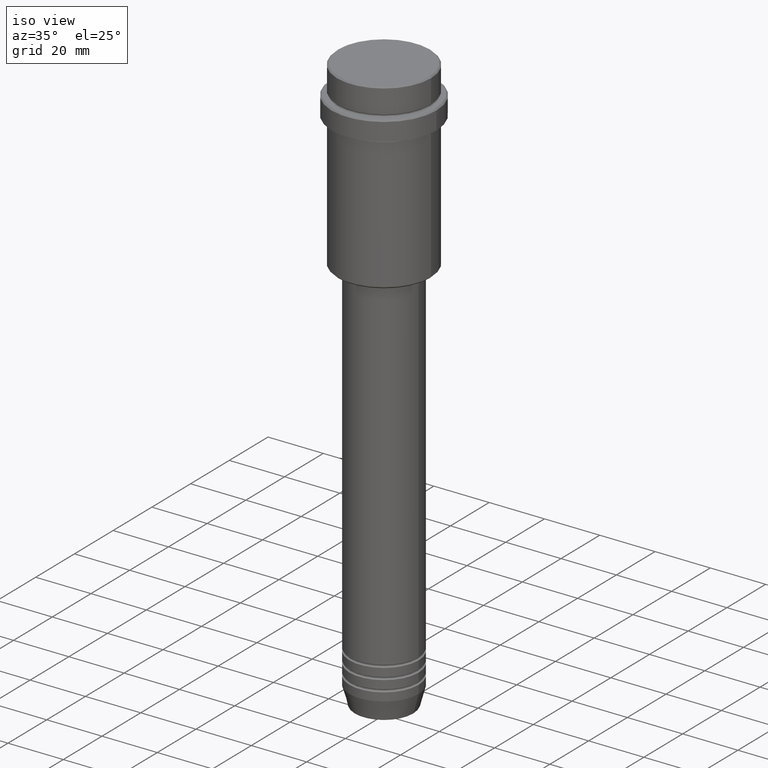
[diagram: clean part render]
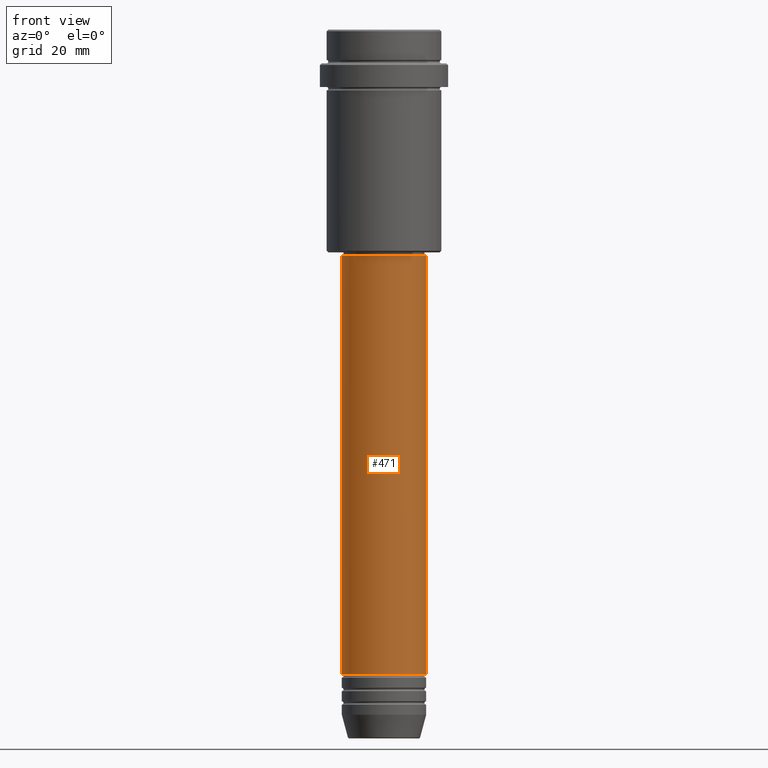
[diagram: tour spotlight — one face highlighted and labeled with its STEP entity id]
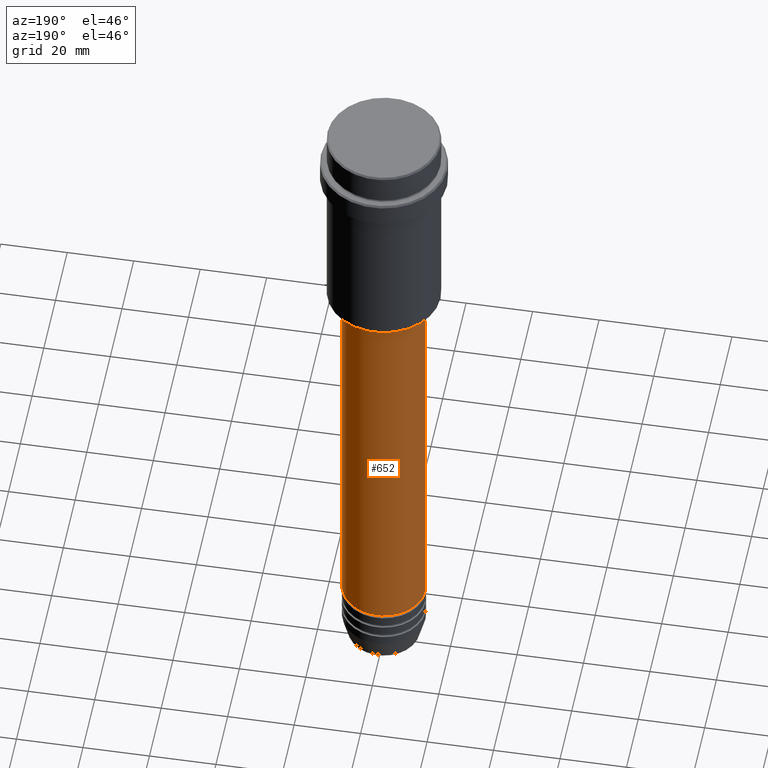
[diagram: tour spotlight — one face highlighted and labeled with its STEP entity id]
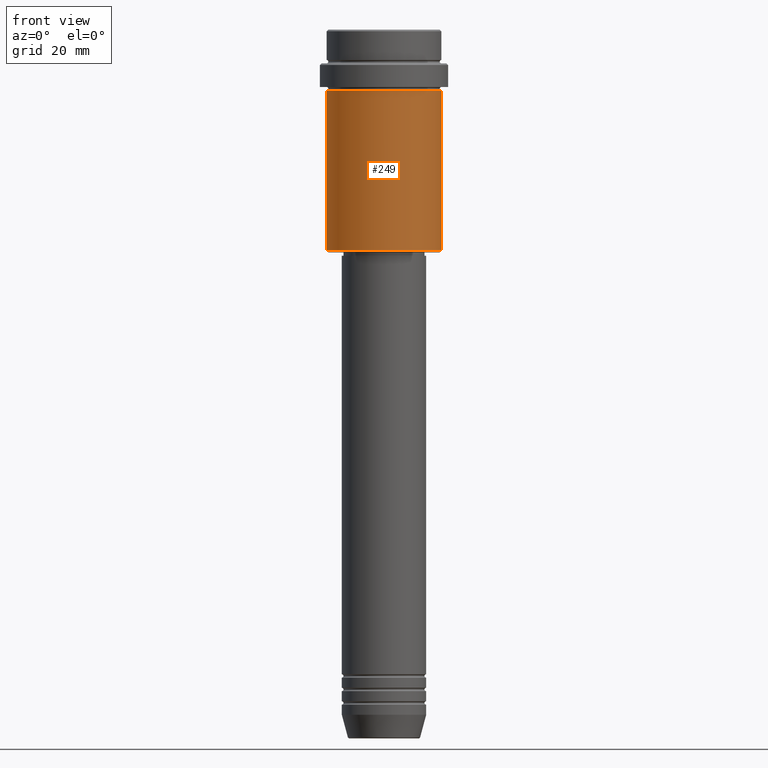
[diagram: tour spotlight — one face highlighted and labeled with its STEP entity id]
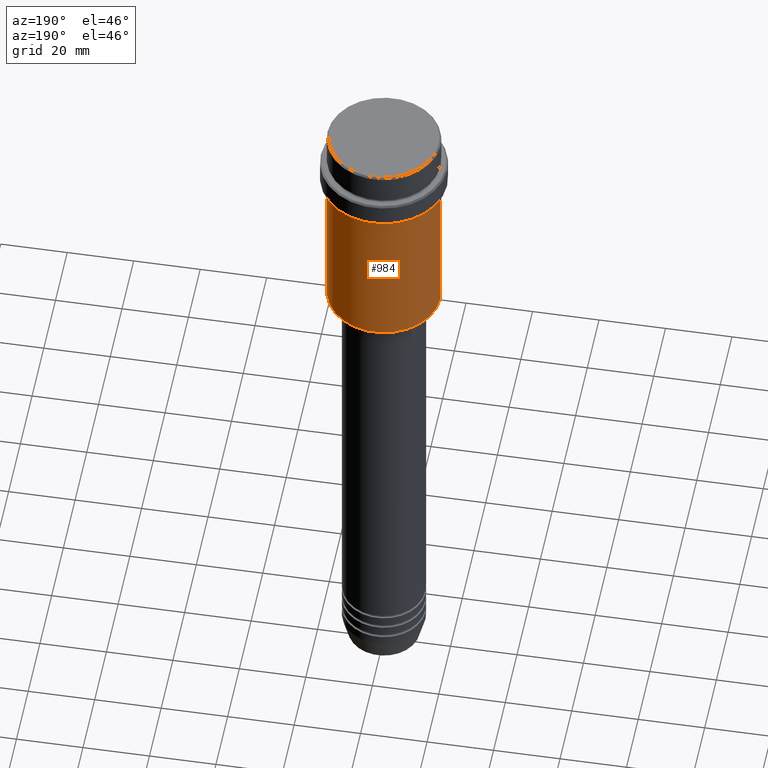
[diagram: tour spotlight — one face highlighted and labeled with its STEP entity id]
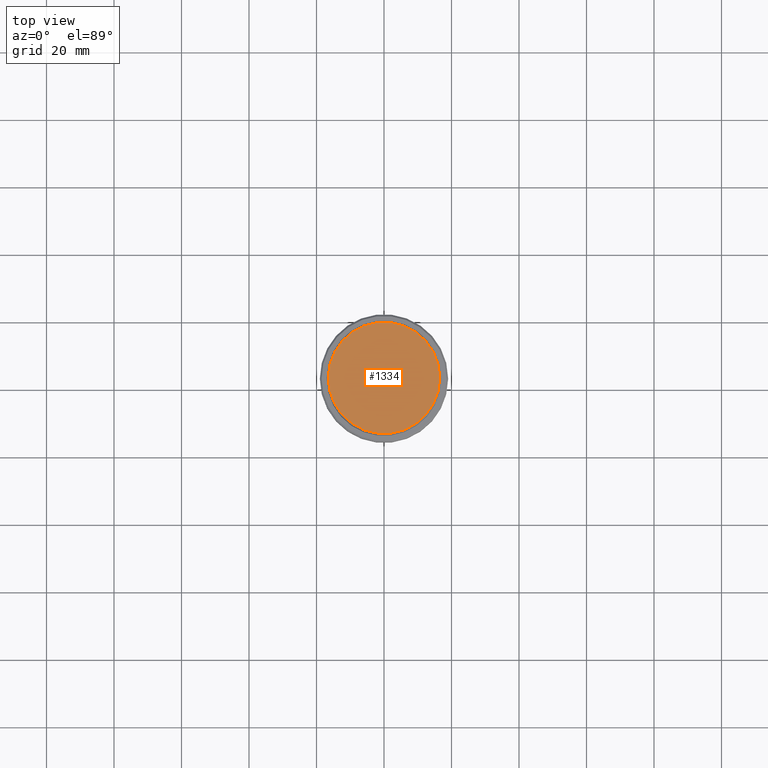
[diagram: tour spotlight — one face highlighted and labeled with its STEP entity id]
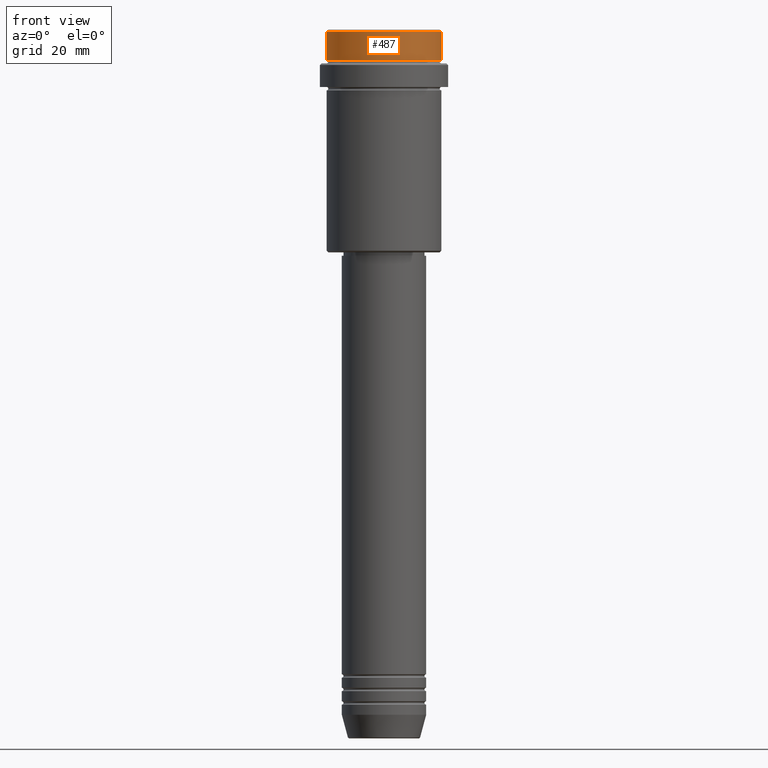
[diagram: tour spotlight — one face highlighted and labeled with its STEP entity id]
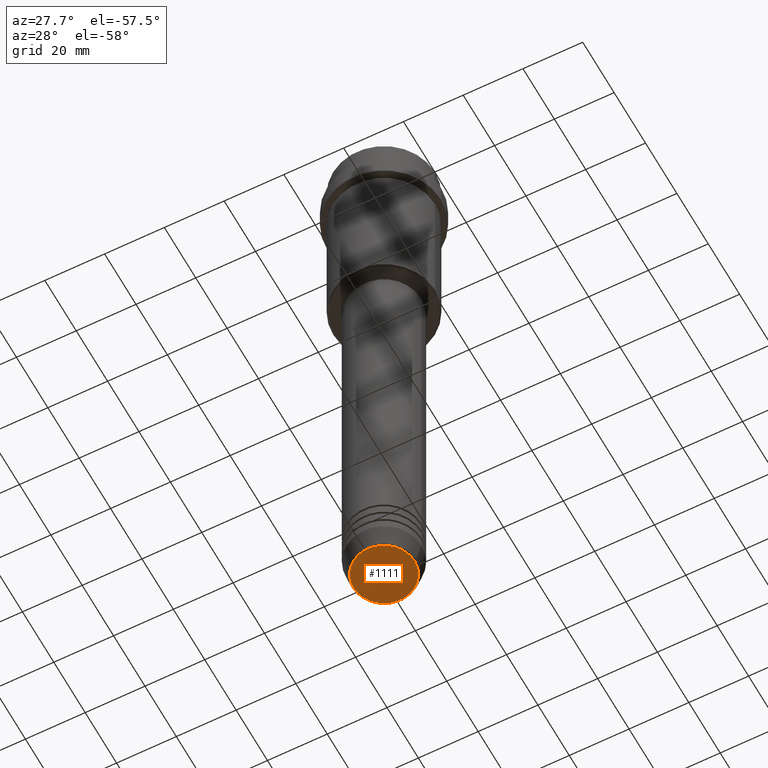
[diagram: tour spotlight — one face highlighted and labeled with its STEP entity id]
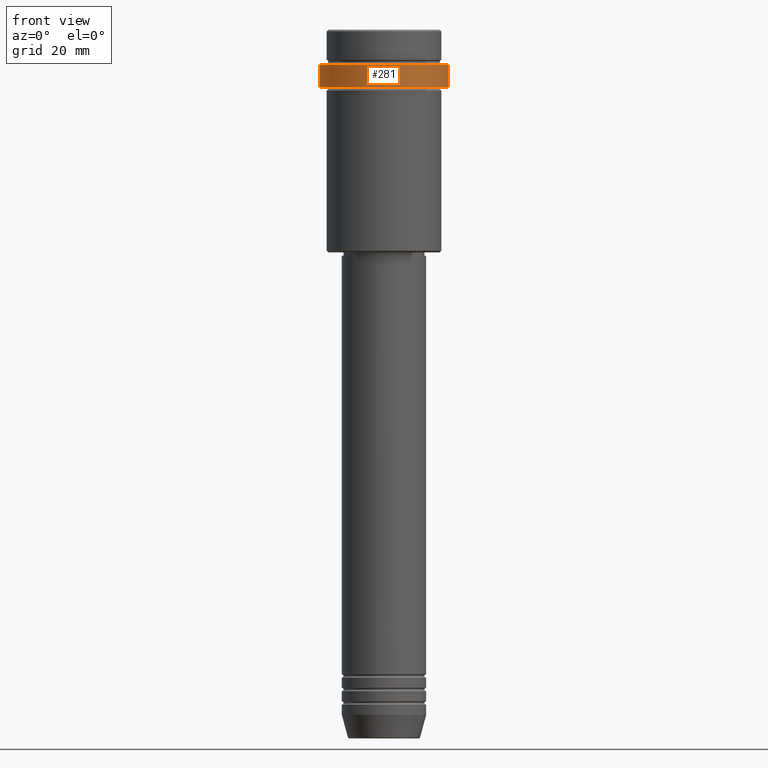
[diagram: tour spotlight — one face highlighted and labeled with its STEP entity id]
A machine part: a face-by-face anatomy tour. The part has 52 B-rep faces; the first image is the clean iso view, then the 8 largest visible faces are spotlighted one at a time (largest first), each with its STEP entity span.

Face 1 — front view, entity #471. In plain terms, the highlighted cylindrical surface (partial cylindrical patch) has radius 12.5 mm, axis along (-0, -0, 1).
Definition (entity closure, byte-faithful):
#24 = LINE ( 'NONE', #993, #838 ) ;
#69 = CARTESIAN_POINT ( 'NONE',  ( 0.000000000000000000, 0.000000000000000000, 0.000000000000000000 ) ) ;
#173 = DIRECTION ( 'NONE',  ( -0.000000000000000000, -0.000000000000000000, 1.000000000000000000 ) ) ;
#257 = VERTEX_POINT ( 'NONE', #261 ) ;
#261 = CARTESIAN_POINT ( 'NONE',  ( -12.50000000000000000, 1.530808498934191521E-15, -190.9999999999999147 ) ) ;
#277 = DIRECTION ( 'NONE',  ( 1.000000000000000000, 0.000000000000000000, 0.000000000000000000 ) ) ;
#289 = CARTESIAN_POINT ( 'NONE',  ( 12.50000000000000000, 0.000000000000000000, -67.00000000000000000 ) ) ;
#372 = CARTESIAN_POINT ( 'NONE',  ( -12.50000000000000000, 1.530808498934191521E-15, -67.00000000000000000 ) ) ;
#376 = DIRECTION ( 'NONE',  ( -0.000000000000000000, -0.000000000000000000, 1.000000000000000000 ) ) ;
#402 = CIRCLE ( 'NONE', #598, 12.50000000000000000 ) ;
#414 = DIRECTION ( 'NONE',  ( -0.000000000000000000, -0.000000000000000000, 1.000000000000000000 ) ) ;
#471 = ADVANCED_FACE ( 'NONE', ( #726 ), #940, .T. ) ;
#492 = VERTEX_POINT ( 'NONE', #289 ) ;
#507 = DIRECTION ( 'NONE',  ( 1.000000000000000000, 0.000000000000000000, 0.000000000000000000 ) ) ;
#529 = LINE ( 'NONE', #1399, #1236 ) ;
#550 = AXIS2_PLACEMENT_3D ( 'NONE', #69, #376, #1148 ) ;
#552 = CIRCLE ( 'NONE', #1115, 12.50000000000000000 ) ;
#556 = CARTESIAN_POINT ( 'NONE',  ( 0.000000000000000000, 0.000000000000000000, -67.00000000000000000 ) ) ;
#568 = ORIENTED_EDGE ( 'NONE', *, *, #693, .F. ) ;
#598 = AXIS2_PLACEMENT_3D ( 'NONE', #556, #949, #507 ) ;
#646 = EDGE_CURVE ( 'NONE', #257, #1302, #529, .T. ) ;
#693 = EDGE_CURVE ( 'NONE', #1302, #492, #402, .T. ) ;
#726 = FACE_OUTER_BOUND ( 'NONE', #869, .T. ) ;
#753 = EDGE_CURVE ( 'NONE', #257, #884, #552, .T. ) ;
#794 = ORIENTED_EDGE ( 'NONE', *, *, #646, .F. ) ;
#838 = VECTOR ( 'NONE', #1227, 1000.000000000000000 ) ;
#869 = EDGE_LOOP ( 'NONE', ( #794, #1129, #1193, #568 ) ) ;
#884 = VERTEX_POINT ( 'NONE', #974 ) ;
#940 = CYLINDRICAL_SURFACE ( 'NONE', #550, 12.50000000000000000 ) ;
#949 = DIRECTION ( 'NONE',  ( -0.000000000000000000, -0.000000000000000000, 1.000000000000000000 ) ) ;
#969 = EDGE_CURVE ( 'NONE', #884, #492, #24, .T. ) ;
#974 = CARTESIAN_POINT ( 'NONE',  ( 12.50000000000000000, 0.000000000000000000, -190.9999999999999147 ) ) ;
#993 = CARTESIAN_POINT ( 'NONE',  ( 12.50000000000000000, 0.000000000000000000, 0.000000000000000000 ) ) ;
#1115 = AXIS2_PLACEMENT_3D ( 'NONE', #1270, #173, #277 ) ;
#1129 = ORIENTED_EDGE ( 'NONE', *, *, #753, .T. ) ;
#1148 = DIRECTION ( 'NONE',  ( 1.000000000000000000, 0.000000000000000000, 0.000000000000000000 ) ) ;
#1193 = ORIENTED_EDGE ( 'NONE', *, *, #969, .T. ) ;
#1227 = DIRECTION ( 'NONE',  ( -0.000000000000000000, -0.000000000000000000, 1.000000000000000000 ) ) ;
#1236 = VECTOR ( 'NONE', #414, 1000.000000000000000 ) ;
#1270 = CARTESIAN_POINT ( 'NONE',  ( 0.000000000000000000, 0.000000000000000000, -190.9999999999999147 ) ) ;
#1302 = VERTEX_POINT ( 'NONE', #372 ) ;
#1399 = CARTESIAN_POINT ( 'NONE',  ( -12.50000000000000000, 1.530808498934191521E-15, 0.000000000000000000 ) ) ;

Face 2 — auxiliary view, entity #652. In plain terms, the highlighted cylindrical surface (partial cylindrical patch) has radius 12.5 mm, axis along (-0, -0, 1).
Definition (entity closure, byte-faithful):
#24 = LINE ( 'NONE', #993, #838 ) ;
#102 = DIRECTION ( 'NONE',  ( -0.000000000000000000, -0.000000000000000000, 1.000000000000000000 ) ) ;
#161 = AXIS2_PLACEMENT_3D ( 'NONE', #968, #102, #532 ) ;
#203 = CARTESIAN_POINT ( 'NONE',  ( 0.000000000000000000, 0.000000000000000000, 0.000000000000000000 ) ) ;
#245 = ORIENTED_EDGE ( 'NONE', *, *, #969, .F. ) ;
#257 = VERTEX_POINT ( 'NONE', #261 ) ;
#261 = CARTESIAN_POINT ( 'NONE',  ( -12.50000000000000000, 1.530808498934191521E-15, -190.9999999999999147 ) ) ;
#289 = CARTESIAN_POINT ( 'NONE',  ( 12.50000000000000000, 0.000000000000000000, -67.00000000000000000 ) ) ;
#310 = AXIS2_PLACEMENT_3D ( 'NONE', #1176, #755, #978 ) ;
#372 = CARTESIAN_POINT ( 'NONE',  ( -12.50000000000000000, 1.530808498934191521E-15, -67.00000000000000000 ) ) ;
#414 = DIRECTION ( 'NONE',  ( -0.000000000000000000, -0.000000000000000000, 1.000000000000000000 ) ) ;
#492 = VERTEX_POINT ( 'NONE', #289 ) ;
#524 = DIRECTION ( 'NONE',  ( 1.000000000000000000, 0.000000000000000000, 0.000000000000000000 ) ) ;
#529 = LINE ( 'NONE', #1399, #1236 ) ;
#532 = DIRECTION ( 'NONE',  ( 1.000000000000000000, 0.000000000000000000, 0.000000000000000000 ) ) ;
#535 = DIRECTION ( 'NONE',  ( -0.000000000000000000, -0.000000000000000000, 1.000000000000000000 ) ) ;
#562 = EDGE_CURVE ( 'NONE', #492, #1302, #929, .T. ) ;
#646 = EDGE_CURVE ( 'NONE', #257, #1302, #529, .T. ) ;
#652 = ADVANCED_FACE ( 'NONE', ( #1296 ), #1182, .T. ) ;
#755 = DIRECTION ( 'NONE',  ( -0.000000000000000000, -0.000000000000000000, 1.000000000000000000 ) ) ;
#756 = ORIENTED_EDGE ( 'NONE', *, *, #646, .T. ) ;
#838 = VECTOR ( 'NONE', #1227, 1000.000000000000000 ) ;
#884 = VERTEX_POINT ( 'NONE', #974 ) ;
#929 = CIRCLE ( 'NONE', #310, 12.50000000000000000 ) ;
#936 = ORIENTED_EDGE ( 'NONE', *, *, #562, .F. ) ;
#968 = CARTESIAN_POINT ( 'NONE',  ( 0.000000000000000000, 0.000000000000000000, -190.9999999999999147 ) ) ;
#969 = EDGE_CURVE ( 'NONE', #884, #492, #24, .T. ) ;
#974 = CARTESIAN_POINT ( 'NONE',  ( 12.50000000000000000, 0.000000000000000000, -190.9999999999999147 ) ) ;
#978 = DIRECTION ( 'NONE',  ( 1.000000000000000000, 0.000000000000000000, 0.000000000000000000 ) ) ;
#993 = CARTESIAN_POINT ( 'NONE',  ( 12.50000000000000000, 0.000000000000000000, 0.000000000000000000 ) ) ;
#1016 = ORIENTED_EDGE ( 'NONE', *, *, #1051, .T. ) ;
#1051 = EDGE_CURVE ( 'NONE', #884, #257, #1284, .T. ) ;
#1164 = AXIS2_PLACEMENT_3D ( 'NONE', #203, #535, #524 ) ;
#1176 = CARTESIAN_POINT ( 'NONE',  ( 0.000000000000000000, 0.000000000000000000, -67.00000000000000000 ) ) ;
#1182 = CYLINDRICAL_SURFACE ( 'NONE', #1164, 12.50000000000000000 ) ;
#1227 = DIRECTION ( 'NONE',  ( -0.000000000000000000, -0.000000000000000000, 1.000000000000000000 ) ) ;
#1236 = VECTOR ( 'NONE', #414, 1000.000000000000000 ) ;
#1284 = CIRCLE ( 'NONE', #161, 12.50000000000000000 ) ;
#1296 = FACE_OUTER_BOUND ( 'NONE', #1342, .T. ) ;
#1302 = VERTEX_POINT ( 'NONE', #372 ) ;
#1342 = EDGE_LOOP ( 'NONE', ( #1016, #756, #936, #245 ) ) ;
#1399 = CARTESIAN_POINT ( 'NONE',  ( -12.50000000000000000, 1.530808498934191521E-15, 0.000000000000000000 ) ) ;

Face 3 — front view, entity #249. In plain terms, the highlighted cylindrical surface (partial cylindrical patch) has radius 17 mm, axis along (-0, -0, 1).
Definition (entity closure, byte-faithful):
#31 = CARTESIAN_POINT ( 'NONE',  ( 16.99999999999998579, 0.000000000000000000, 0.000000000000000000 ) ) ;
#32 = CYLINDRICAL_SURFACE ( 'NONE', #1003, 16.99999999999998579 ) ;
#114 = ORIENTED_EDGE ( 'NONE', *, *, #1001, .T. ) ;
#129 = CARTESIAN_POINT ( 'NONE',  ( -16.99999999999997513, 2.081899558550498307E-15, -18.00000000000000711 ) ) ;
#141 = CARTESIAN_POINT ( 'NONE',  ( 16.99999999999998579, 0.000000000000000000, -65.50000000000008527 ) ) ;
#142 = CARTESIAN_POINT ( 'NONE',  ( 0.000000000000000000, 0.000000000000000000, 0.000000000000000000 ) ) ;
#188 = DIRECTION ( 'NONE',  ( -0.000000000000000000, -0.000000000000000000, 1.000000000000000000 ) ) ;
#232 = VECTOR ( 'NONE', #1206, 1000.000000000000000 ) ;
#249 = ADVANCED_FACE ( 'NONE', ( #1117 ), #32, .T. ) ;
#314 = CARTESIAN_POINT ( 'NONE',  ( 0.000000000000000000, 0.000000000000000000, -65.50000000000008527 ) ) ;
#331 = EDGE_CURVE ( 'NONE', #1149, #1410, #1092, .T. ) ;
#464 = ORIENTED_EDGE ( 'NONE', *, *, #331, .F. ) ;
#469 = DIRECTION ( 'NONE',  ( -0.000000000000000000, -0.000000000000000000, 1.000000000000000000 ) ) ;
#470 = VERTEX_POINT ( 'NONE', #948 ) ;
#525 = CARTESIAN_POINT ( 'NONE',  ( 0.000000000000000000, 0.000000000000000000, -18.00000000000000711 ) ) ;
#579 = DIRECTION ( 'NONE',  ( 1.000000000000000000, 0.000000000000000000, 0.000000000000000000 ) ) ;
#600 = CIRCLE ( 'NONE', #1146, 16.99999999999998579 ) ;
#671 = LINE ( 'NONE', #935, #1072 ) ;
#717 = EDGE_CURVE ( 'NONE', #470, #1149, #671, .T. ) ;
#731 = DIRECTION ( 'NONE',  ( 1.000000000000000000, 0.000000000000000000, 0.000000000000000000 ) ) ;
#738 = DIRECTION ( 'NONE',  ( -0.000000000000000000, -0.000000000000000000, 1.000000000000000000 ) ) ;
#785 = ORIENTED_EDGE ( 'NONE', *, *, #1093, .T. ) ;
#836 = AXIS2_PLACEMENT_3D ( 'NONE', #525, #943, #731 ) ;
#880 = EDGE_LOOP ( 'NONE', ( #1337, #785, #114, #464 ) ) ;
#935 = CARTESIAN_POINT ( 'NONE',  ( -16.99999999999998579, 2.081899558550499096E-15, 0.000000000000000000 ) ) ;
#943 = DIRECTION ( 'NONE',  ( -0.000000000000000000, -0.000000000000000000, 1.000000000000000000 ) ) ;
#948 = CARTESIAN_POINT ( 'NONE',  ( -16.99999999999998579, 2.081899558550499096E-15, -65.50000000000008527 ) ) ;
#994 = VERTEX_POINT ( 'NONE', #141 ) ;
#1001 = EDGE_CURVE ( 'NONE', #994, #1410, #1014, .T. ) ;
#1003 = AXIS2_PLACEMENT_3D ( 'NONE', #142, #469, #579 ) ;
#1014 = LINE ( 'NONE', #31, #232 ) ;
#1072 = VECTOR ( 'NONE', #188, 1000.000000000000000 ) ;
#1092 = CIRCLE ( 'NONE', #836, 16.99999999999997513 ) ;
#1093 = EDGE_CURVE ( 'NONE', #470, #994, #600, .T. ) ;
#1117 = FACE_OUTER_BOUND ( 'NONE', #880, .T. ) ;
#1146 = AXIS2_PLACEMENT_3D ( 'NONE', #314, #738, #1309 ) ;
#1149 = VERTEX_POINT ( 'NONE', #129 ) ;
#1195 = CARTESIAN_POINT ( 'NONE',  ( 16.99999999999997513, 0.000000000000000000, -18.00000000000000711 ) ) ;
#1206 = DIRECTION ( 'NONE',  ( -0.000000000000000000, -0.000000000000000000, 1.000000000000000000 ) ) ;
#1309 = DIRECTION ( 'NONE',  ( -1.000000000000000000, 0.000000000000000000, 0.000000000000000000 ) ) ;
#1337 = ORIENTED_EDGE ( 'NONE', *, *, #717, .F. ) ;
#1410 = VERTEX_POINT ( 'NONE', #1195 ) ;

Face 4 — auxiliary view, entity #984. In plain terms, the highlighted cylindrical surface (partial cylindrical patch) has radius 17 mm, axis along (-0, -0, 1).
Definition (entity closure, byte-faithful):
#4 = FACE_OUTER_BOUND ( 'NONE', #814, .T. ) ;
#11 = CARTESIAN_POINT ( 'NONE',  ( 0.000000000000000000, 0.000000000000000000, 0.000000000000000000 ) ) ;
#31 = CARTESIAN_POINT ( 'NONE',  ( 16.99999999999998579, 0.000000000000000000, 0.000000000000000000 ) ) ;
#35 = CARTESIAN_POINT ( 'NONE',  ( 0.000000000000000000, 0.000000000000000000, -18.00000000000000711 ) ) ;
#129 = CARTESIAN_POINT ( 'NONE',  ( -16.99999999999997513, 2.081899558550498307E-15, -18.00000000000000711 ) ) ;
#141 = CARTESIAN_POINT ( 'NONE',  ( 16.99999999999998579, 0.000000000000000000, -65.50000000000008527 ) ) ;
#162 = DIRECTION ( 'NONE',  ( 1.000000000000000000, 0.000000000000000000, 0.000000000000000000 ) ) ;
#188 = DIRECTION ( 'NONE',  ( -0.000000000000000000, -0.000000000000000000, 1.000000000000000000 ) ) ;
#232 = VECTOR ( 'NONE', #1206, 1000.000000000000000 ) ;
#254 = CIRCLE ( 'NONE', #1050, 16.99999999999998579 ) ;
#260 = DIRECTION ( 'NONE',  ( -1.000000000000000000, 0.000000000000000000, 0.000000000000000000 ) ) ;
#297 = CIRCLE ( 'NONE', #1285, 16.99999999999997513 ) ;
#381 = CARTESIAN_POINT ( 'NONE',  ( 0.000000000000000000, 0.000000000000000000, -65.50000000000008527 ) ) ;
#457 = AXIS2_PLACEMENT_3D ( 'NONE', #11, #461, #1116 ) ;
#461 = DIRECTION ( 'NONE',  ( -0.000000000000000000, -0.000000000000000000, 1.000000000000000000 ) ) ;
#470 = VERTEX_POINT ( 'NONE', #948 ) ;
#671 = LINE ( 'NONE', #935, #1072 ) ;
#680 = ORIENTED_EDGE ( 'NONE', *, *, #1001, .F. ) ;
#717 = EDGE_CURVE ( 'NONE', #470, #1149, #671, .T. ) ;
#805 = DIRECTION ( 'NONE',  ( -0.000000000000000000, -0.000000000000000000, 1.000000000000000000 ) ) ;
#814 = EDGE_LOOP ( 'NONE', ( #1085, #871, #1289, #680 ) ) ;
#871 = ORIENTED_EDGE ( 'NONE', *, *, #717, .T. ) ;
#876 = CYLINDRICAL_SURFACE ( 'NONE', #457, 16.99999999999998579 ) ;
#935 = CARTESIAN_POINT ( 'NONE',  ( -16.99999999999998579, 2.081899558550499096E-15, 0.000000000000000000 ) ) ;
#948 = CARTESIAN_POINT ( 'NONE',  ( -16.99999999999998579, 2.081899558550499096E-15, -65.50000000000008527 ) ) ;
#984 = ADVANCED_FACE ( 'NONE', ( #4 ), #876, .T. ) ;
#994 = VERTEX_POINT ( 'NONE', #141 ) ;
#1001 = EDGE_CURVE ( 'NONE', #994, #1410, #1014, .T. ) ;
#1014 = LINE ( 'NONE', #31, #232 ) ;
#1050 = AXIS2_PLACEMENT_3D ( 'NONE', #381, #805, #260 ) ;
#1072 = VECTOR ( 'NONE', #188, 1000.000000000000000 ) ;
#1085 = ORIENTED_EDGE ( 'NONE', *, *, #1168, .T. ) ;
#1116 = DIRECTION ( 'NONE',  ( 1.000000000000000000, 0.000000000000000000, 0.000000000000000000 ) ) ;
#1149 = VERTEX_POINT ( 'NONE', #129 ) ;
#1150 = DIRECTION ( 'NONE',  ( -0.000000000000000000, -0.000000000000000000, 1.000000000000000000 ) ) ;
#1168 = EDGE_CURVE ( 'NONE', #994, #470, #254, .T. ) ;
#1195 = CARTESIAN_POINT ( 'NONE',  ( 16.99999999999997513, 0.000000000000000000, -18.00000000000000711 ) ) ;
#1206 = DIRECTION ( 'NONE',  ( -0.000000000000000000, -0.000000000000000000, 1.000000000000000000 ) ) ;
#1271 = EDGE_CURVE ( 'NONE', #1410, #1149, #297, .T. ) ;
#1285 = AXIS2_PLACEMENT_3D ( 'NONE', #35, #1150, #162 ) ;
#1289 = ORIENTED_EDGE ( 'NONE', *, *, #1271, .F. ) ;
#1410 = VERTEX_POINT ( 'NONE', #1195 ) ;

Face 5 — top view, entity #1334. In plain terms, the highlighted planar face has unit normal (0, -0, 1).
Definition (entity closure, byte-faithful):
#5 = EDGE_CURVE ( 'NONE', #1091, #440, #400, .T. ) ;
#49 = DIRECTION ( 'NONE',  ( -0.000000000000000000, -0.000000000000000000, 1.000000000000000000 ) ) ;
#76 = CARTESIAN_POINT ( 'NONE',  ( 0.000000000000000000, 0.000000000000000000, 0.000000000000000000 ) ) ;
#313 = AXIS2_PLACEMENT_3D ( 'NONE', #76, #49, #1272 ) ;
#318 = ORIENTED_EDGE ( 'NONE', *, *, #5, .T. ) ;
#400 = CIRCLE ( 'NONE', #548, 16.50000000000001421 ) ;
#424 = FACE_OUTER_BOUND ( 'NONE', #995, .T. ) ;
#436 = DIRECTION ( 'NONE',  ( 1.000000000000000000, 0.000000000000000000, 0.000000000000000000 ) ) ;
#440 = VERTEX_POINT ( 'NONE', #666 ) ;
#548 = AXIS2_PLACEMENT_3D ( 'NONE', #1000, #1223, #436 ) ;
#666 = CARTESIAN_POINT ( 'NONE',  ( -16.50000000000001421, 0.000000000000000000, 0.000000000000000000 ) ) ;
#672 = AXIS2_PLACEMENT_3D ( 'NONE', #1081, #1076, #960 ) ;
#862 = PLANE ( 'NONE',  #672 ) ;
#870 = CARTESIAN_POINT ( 'NONE',  ( 16.50000000000001421, 2.051283388571816887E-15, 0.000000000000000000 ) ) ;
#960 = DIRECTION ( 'NONE',  ( 1.000000000000000000, 0.000000000000000000, 0.000000000000000000 ) ) ;
#995 = EDGE_LOOP ( 'NONE', ( #1100, #318 ) ) ;
#1000 = CARTESIAN_POINT ( 'NONE',  ( 0.000000000000000000, 0.000000000000000000, 0.000000000000000000 ) ) ;
#1023 = EDGE_CURVE ( 'NONE', #440, #1091, #1393, .T. ) ;
#1076 = DIRECTION ( 'NONE',  ( 0.000000000000000000, -0.000000000000000000, 1.000000000000000000 ) ) ;
#1081 = CARTESIAN_POINT ( 'NONE',  ( 0.000000000000000000, 0.000000000000000000, 0.000000000000000000 ) ) ;
#1091 = VERTEX_POINT ( 'NONE', #870 ) ;
#1100 = ORIENTED_EDGE ( 'NONE', *, *, #1023, .T. ) ;
#1223 = DIRECTION ( 'NONE',  ( -0.000000000000000000, -0.000000000000000000, 1.000000000000000000 ) ) ;
#1272 = DIRECTION ( 'NONE',  ( 1.000000000000000000, 0.000000000000000000, 0.000000000000000000 ) ) ;
#1334 = ADVANCED_FACE ( 'NONE', ( #424 ), #862, .T. ) ;
#1393 = CIRCLE ( 'NONE', #313, 16.50000000000001421 ) ;

Face 6 — front view, entity #487. In plain terms, the highlighted cylindrical surface (partial cylindrical patch) has radius 17 mm, axis along (-0, -0, 1).
Definition (entity closure, byte-faithful):
#86 = LINE ( 'NONE', #822, #291 ) ;
#87 = AXIS2_PLACEMENT_3D ( 'NONE', #932, #1261, #156 ) ;
#148 = VERTEX_POINT ( 'NONE', #462 ) ;
#156 = DIRECTION ( 'NONE',  ( 1.000000000000000000, 0.000000000000000000, 0.000000000000000000 ) ) ;
#193 = ORIENTED_EDGE ( 'NONE', *, *, #351, .F. ) ;
#224 = DIRECTION ( 'NONE',  ( 1.000000000000000000, 0.000000000000000000, 0.000000000000000000 ) ) ;
#269 = AXIS2_PLACEMENT_3D ( 'NONE', #648, #311, #1387 ) ;
#291 = VECTOR ( 'NONE', #498, 1000.000000000000000 ) ;
#311 = DIRECTION ( 'NONE',  ( 0.000000000000000000, 0.000000000000000000, -1.000000000000000000 ) ) ;
#351 = EDGE_CURVE ( 'NONE', #363, #463, #86, .T. ) ;
#363 = VERTEX_POINT ( 'NONE', #925 ) ;
#462 = CARTESIAN_POINT ( 'NONE',  ( 16.99999999999998579, 0.000000000000000000, -0.5000000000000108802 ) ) ;
#463 = VERTEX_POINT ( 'NONE', #1074 ) ;
#487 = ADVANCED_FACE ( 'NONE', ( #828 ), #1273, .T. ) ;
#498 = DIRECTION ( 'NONE',  ( -0.000000000000000000, -0.000000000000000000, 1.000000000000000000 ) ) ;
#512 = DIRECTION ( 'NONE',  ( -0.000000000000000000, -0.000000000000000000, 1.000000000000000000 ) ) ;
#576 = EDGE_CURVE ( 'NONE', #363, #918, #1345, .T. ) ;
#615 = CARTESIAN_POINT ( 'NONE',  ( 16.99999999999998579, 0.000000000000000000, 0.000000000000000000 ) ) ;
#618 = EDGE_CURVE ( 'NONE', #148, #463, #1213, .T. ) ;
#648 = CARTESIAN_POINT ( 'NONE',  ( 0.000000000000000000, 0.000000000000000000, -0.5000000000000108802 ) ) ;
#657 = ORIENTED_EDGE ( 'NONE', *, *, #576, .T. ) ;
#691 = EDGE_LOOP ( 'NONE', ( #193, #657, #1315, #737 ) ) ;
#737 = ORIENTED_EDGE ( 'NONE', *, *, #618, .T. ) ;
#745 = EDGE_CURVE ( 'NONE', #918, #148, #1279, .T. ) ;
#822 = CARTESIAN_POINT ( 'NONE',  ( -16.99999999999998579, 2.081899558550499096E-15, 0.000000000000000000 ) ) ;
#828 = FACE_OUTER_BOUND ( 'NONE', #691, .T. ) ;
#918 = VERTEX_POINT ( 'NONE', #963 ) ;
#925 = CARTESIAN_POINT ( 'NONE',  ( -16.99999999999997513, 2.081899558550498307E-15, -8.999999999999998224 ) ) ;
#932 = CARTESIAN_POINT ( 'NONE',  ( 0.000000000000000000, 0.000000000000000000, 0.000000000000000000 ) ) ;
#963 = CARTESIAN_POINT ( 'NONE',  ( 16.99999999999997513, 0.000000000000000000, -8.999999999999998224 ) ) ;
#1074 = CARTESIAN_POINT ( 'NONE',  ( -16.99999999999998579, 2.081899558550499096E-15, -0.5000000000000108802 ) ) ;
#1080 = DIRECTION ( 'NONE',  ( -0.000000000000000000, -0.000000000000000000, 1.000000000000000000 ) ) ;
#1213 = CIRCLE ( 'NONE', #269, 16.99999999999998579 ) ;
#1261 = DIRECTION ( 'NONE',  ( -0.000000000000000000, -0.000000000000000000, 1.000000000000000000 ) ) ;
#1273 = CYLINDRICAL_SURFACE ( 'NONE', #87, 16.99999999999998579 ) ;
#1279 = LINE ( 'NONE', #615, #1388 ) ;
#1292 = CARTESIAN_POINT ( 'NONE',  ( 0.000000000000000000, 0.000000000000000000, -8.999999999999998224 ) ) ;
#1303 = AXIS2_PLACEMENT_3D ( 'NONE', #1292, #1080, #224 ) ;
#1315 = ORIENTED_EDGE ( 'NONE', *, *, #745, .T. ) ;
#1345 = CIRCLE ( 'NONE', #1303, 16.99999999999997513 ) ;
#1387 = DIRECTION ( 'NONE',  ( 1.000000000000000000, 0.000000000000000000, 0.000000000000000000 ) ) ;
#1388 = VECTOR ( 'NONE', #512, 1000.000000000000000 ) ;

Face 7 — auxiliary view, entity #1111. In plain terms, the highlighted planar face has unit normal (0, -0, 1).
Definition (entity closure, byte-faithful):
#14 = ORIENTED_EDGE ( 'NONE', *, *, #1054, .T. ) ;
#45 = EDGE_CURVE ( 'NONE', #276, #1232, #425, .T. ) ;
#98 = ORIENTED_EDGE ( 'NONE', *, *, #45, .T. ) ;
#185 = AXIS2_PLACEMENT_3D ( 'NONE', #989, #438, #1314 ) ;
#237 = DIRECTION ( 'NONE',  ( 0.000000000000000000, 0.000000000000000000, -1.000000000000000000 ) ) ;
#276 = VERTEX_POINT ( 'NONE', #514 ) ;
#284 = EDGE_LOOP ( 'NONE', ( #14, #98 ) ) ;
#421 = DIRECTION ( 'NONE',  ( 1.000000000000000000, 0.000000000000000000, 0.000000000000000000 ) ) ;
#425 = CIRCLE ( 'NONE', #1233, 10.24069215899265828 ) ;
#438 = DIRECTION ( 'NONE',  ( 0.000000000000000000, -0.000000000000000000, 1.000000000000000000 ) ) ;
#514 = CARTESIAN_POINT ( 'NONE',  ( -10.24069215899265828, 1.283696036640842178E-15, -210.0000000000000284 ) ) ;
#641 = AXIS2_PLACEMENT_3D ( 'NONE', #1400, #1192, #421 ) ;
#651 = CARTESIAN_POINT ( 'NONE',  ( 0.000000000000000000, 0.000000000000000000, -210.0000000000000284 ) ) ;
#662 = DIRECTION ( 'NONE',  ( 1.000000000000000000, 0.000000000000000000, 0.000000000000000000 ) ) ;
#663 = FACE_OUTER_BOUND ( 'NONE', #284, .T. ) ;
#985 = CIRCLE ( 'NONE', #641, 10.24069215899265828 ) ;
#989 = CARTESIAN_POINT ( 'NONE',  ( 0.000000000000000000, 0.000000000000000000, -210.0000000000000284 ) ) ;
#1054 = EDGE_CURVE ( 'NONE', #1232, #276, #985, .T. ) ;
#1088 = PLANE ( 'NONE',  #185 ) ;
#1111 = ADVANCED_FACE ( 'NONE', ( #663 ), #1088, .F. ) ;
#1192 = DIRECTION ( 'NONE',  ( 0.000000000000000000, 0.000000000000000000, -1.000000000000000000 ) ) ;
#1232 = VERTEX_POINT ( 'NONE', #1267 ) ;
#1233 = AXIS2_PLACEMENT_3D ( 'NONE', #651, #237, #662 ) ;
#1267 = CARTESIAN_POINT ( 'NONE',  ( 10.24069215899265828, 0.000000000000000000, -210.0000000000000284 ) ) ;
#1314 = DIRECTION ( 'NONE',  ( 1.000000000000000000, 0.000000000000000000, 0.000000000000000000 ) ) ;
#1400 = CARTESIAN_POINT ( 'NONE',  ( 0.000000000000000000, 0.000000000000000000, -210.0000000000000284 ) ) ;

Face 8 — front view, entity #281. In plain terms, the highlighted cylindrical surface (partial cylindrical patch) has radius 19 mm, axis along (-0, -0, 1).
Definition (entity closure, byte-faithful):
#17 = AXIS2_PLACEMENT_3D ( 'NONE', #247, #266, #25 ) ;
#25 = DIRECTION ( 'NONE',  ( 1.000000000000000000, 0.000000000000000000, 0.000000000000000000 ) ) ;
#53 = CARTESIAN_POINT ( 'NONE',  ( 18.99999999999997158, 0.000000000000000000, -17.00000000000000000 ) ) ;
#55 = ORIENTED_EDGE ( 'NONE', *, *, #190, .T. ) ;
#181 = LINE ( 'NONE', #622, #748 ) ;
#190 = EDGE_CURVE ( 'NONE', #447, #787, #1138, .T. ) ;
#215 = VERTEX_POINT ( 'NONE', #1015 ) ;
#223 = VERTEX_POINT ( 'NONE', #1128 ) ;
#247 = CARTESIAN_POINT ( 'NONE',  ( 0.000000000000000000, 0.000000000000000000, -17.00000000000000000 ) ) ;
#266 = DIRECTION ( 'NONE',  ( -0.000000000000000000, -0.000000000000000000, 1.000000000000000000 ) ) ;
#281 = ADVANCED_FACE ( 'NONE', ( #1375 ), #504, .T. ) ;
#350 = EDGE_CURVE ( 'NONE', #447, #215, #181, .T. ) ;
#405 = AXIS2_PLACEMENT_3D ( 'NONE', #1061, #1099, #1053 ) ;
#447 = VERTEX_POINT ( 'NONE', #757 ) ;
#465 = EDGE_CURVE ( 'NONE', #787, #223, #658, .T. ) ;
#504 = CYLINDRICAL_SURFACE ( 'NONE', #1235, 18.99999999999997158 ) ;
#508 = DIRECTION ( 'NONE',  ( 1.000000000000000000, 0.000000000000000000, 0.000000000000000000 ) ) ;
#569 = CARTESIAN_POINT ( 'NONE',  ( 18.99999999999997158, 0.000000000000000000, 0.000000000000000000 ) ) ;
#575 = EDGE_LOOP ( 'NONE', ( #1145, #55, #1006, #1011 ) ) ;
#622 = CARTESIAN_POINT ( 'NONE',  ( -18.99999999999997158, 2.326828918379967420E-15, 0.000000000000000000 ) ) ;
#630 = DIRECTION ( 'NONE',  ( -0.000000000000000000, -0.000000000000000000, 1.000000000000000000 ) ) ;
#633 = DIRECTION ( 'NONE',  ( -0.000000000000000000, -0.000000000000000000, 1.000000000000000000 ) ) ;
#656 = EDGE_CURVE ( 'NONE', #223, #215, #749, .T. ) ;
#658 = LINE ( 'NONE', #569, #1257 ) ;
#748 = VECTOR ( 'NONE', #633, 1000.000000000000000 ) ;
#749 = CIRCLE ( 'NONE', #405, 18.99999999999997158 ) ;
#757 = CARTESIAN_POINT ( 'NONE',  ( -18.99999999999997158, 2.326828918379967420E-15, -17.00000000000000000 ) ) ;
#787 = VERTEX_POINT ( 'NONE', #53 ) ;
#937 = CARTESIAN_POINT ( 'NONE',  ( 0.000000000000000000, 0.000000000000000000, 0.000000000000000000 ) ) ;
#1006 = ORIENTED_EDGE ( 'NONE', *, *, #465, .T. ) ;
#1011 = ORIENTED_EDGE ( 'NONE', *, *, #656, .T. ) ;
#1015 = CARTESIAN_POINT ( 'NONE',  ( -18.99999999999997158, 2.326828918379967420E-15, -10.49999999999998934 ) ) ;
#1053 = DIRECTION ( 'NONE',  ( 1.000000000000000000, 0.000000000000000000, 0.000000000000000000 ) ) ;
#1061 = CARTESIAN_POINT ( 'NONE',  ( 0.000000000000000000, 0.000000000000000000, -10.49999999999998934 ) ) ;
#1099 = DIRECTION ( 'NONE',  ( 0.000000000000000000, 0.000000000000000000, -1.000000000000000000 ) ) ;
#1112 = DIRECTION ( 'NONE',  ( -0.000000000000000000, -0.000000000000000000, 1.000000000000000000 ) ) ;
#1128 = CARTESIAN_POINT ( 'NONE',  ( 18.99999999999997158, 0.000000000000000000, -10.49999999999998934 ) ) ;
#1138 = CIRCLE ( 'NONE', #17, 18.99999999999997158 ) ;
#1145 = ORIENTED_EDGE ( 'NONE', *, *, #350, .F. ) ;
#1235 = AXIS2_PLACEMENT_3D ( 'NONE', #937, #630, #508 ) ;
#1257 = VECTOR ( 'NONE', #1112, 1000.000000000000000 ) ;
#1375 = FACE_OUTER_BOUND ( 'NONE', #575, .T. ) ;